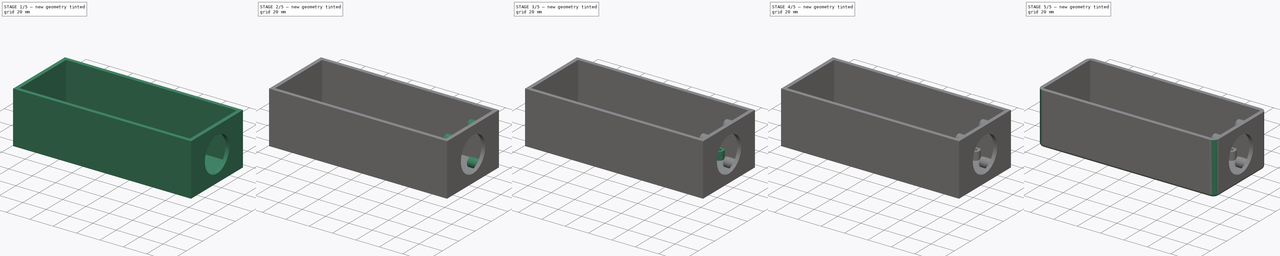
[diagram: build sequence overview — one tinted view per stage of 5, left to right]
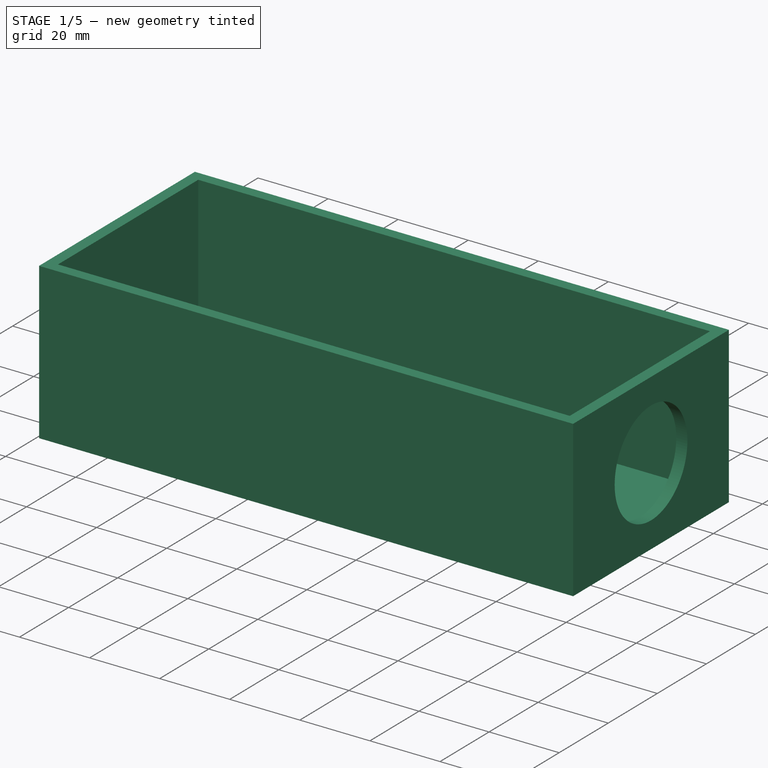
[diagram: stage 1 of 5 — iso view after this stage's code; geometry added in this stage tinted green]
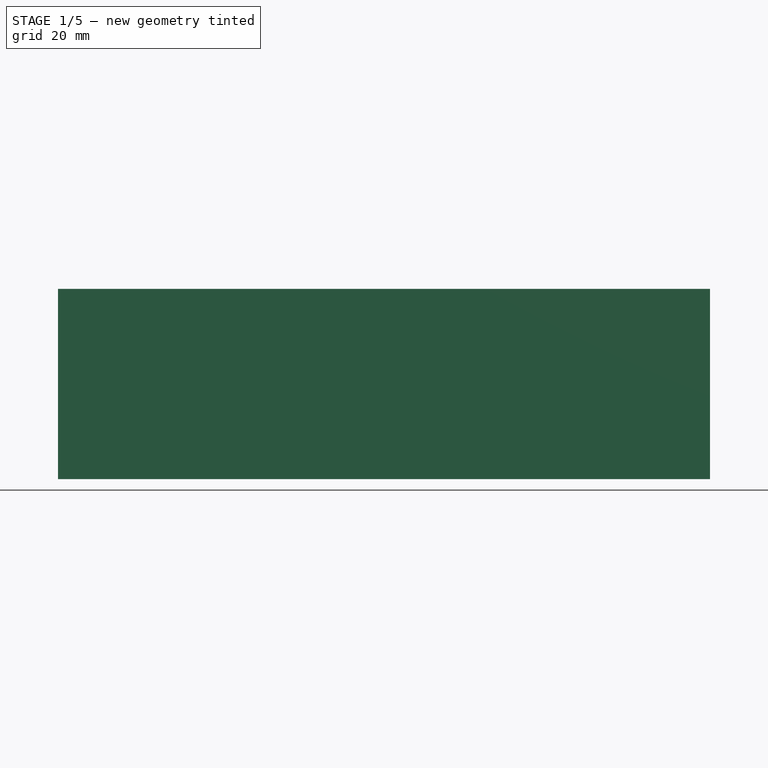
[diagram: stage 1 of 5 — front view after this stage's code; geometry added in this stage tinted green]
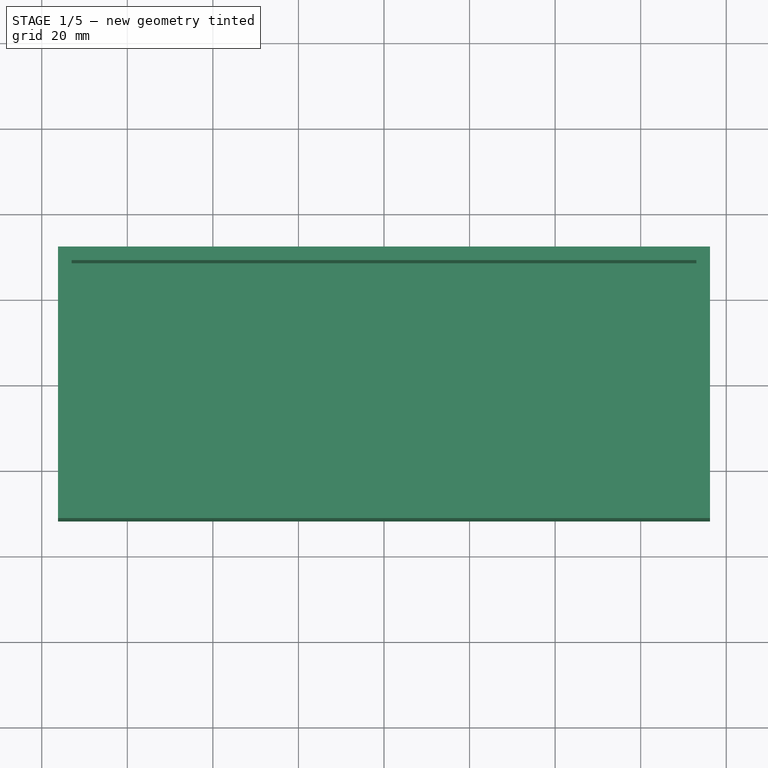
[diagram: stage 1 of 5 — top view after this stage's code; geometry added in this stage tinted green]
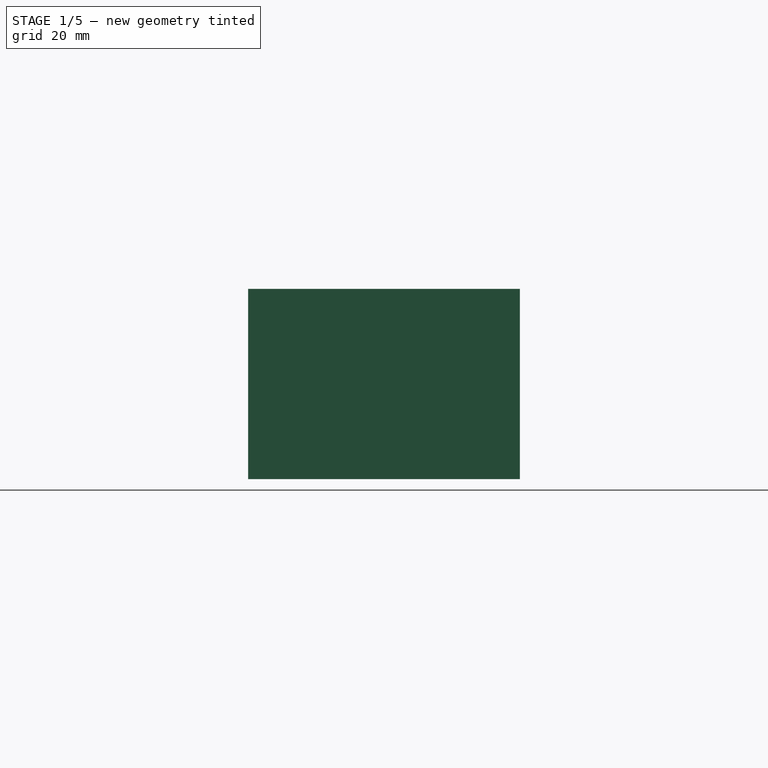
[diagram: stage 1 of 5 — right view after this stage's code; geometry added in this stage tinted green]
FCSTD DOCUMENT  (FreeCAD 1.0R39109 (Git))
Label: bottom
License: All rights reserved
LicenseURL: https://en.wikipedia.org/wiki/All_rights_reserved
objects: Sketcher::SketchObject×14, PartDesign::Pad×6, PartDesign::Hole×5, PartDesign::Pocket×3, PartDesign::Fillet×2, PartDesign::Body×1
note: 77 computed .brp shape members not serialized (recipe doc carries the construction recipe); baked Part::Feature solids carry a one-line shape summary decoded from their .brp

FEATURE [Sketcher::SketchObject] Sketch
  ArcFitTolerance = 1e-06
  AttachmentSupport = -> [XY_Plane]
  FullyConstrained = true
  MakeInternals = false
  MapMode = 5
  sketch-geometry (4):
    g0: LineSegment StartX=-76.2 StartY=31.75 StartZ=0 EndX=-76.2 EndY=-31.75 EndZ=0
    g1: LineSegment StartX=-76.2 StartY=-31.75 StartZ=0 EndX=76.2 EndY=-31.75 EndZ=0
    g2: LineSegment StartX=76.2 StartY=-31.75 StartZ=0 EndX=76.2 EndY=31.75 EndZ=0
    g3: LineSegment StartX=76.2 StartY=31.75 StartZ=0 EndX=-76.2 EndY=31.75 EndZ=0
  constraints (11):
    c: Coincident(g0,g1)
    c: Coincident(g1,g2)
    c: Coincident(g2,g3)
    c: Coincident(g3,g0)
    c: Vertical(g0)
    c: Vertical(g2)
    c: Horizontal(g1)
    c: Horizontal(g3)
    c: DistanceX(g3,g3) = 152.4
    c: Distance(g2,g2) = 63.5
    c: Symmetric(g0,g2,g-1)
FEATURE [PartDesign::Pad] Pad  label="Main Body"
  Direction = (0,0,1)
  Length = 44.45
  Length2 = 10
  Profile = -> Sketch
  ReferenceAxis = -> Sketch [N_Axis]
  Refine = true
  Suppressed = false
  Type = 0
FEATURE [Sketcher::SketchObject] Sketch001
  ArcFitTolerance = 1e-06
  AttachmentOffset = pos=(0,0,44.45) rot=(0,0,1;0rad)
  AttachmentSupport = -> [XY_Plane]
  FullyConstrained = true
  MakeInternals = false
  MapMode = 5
  Placement = pos=(0,0,44.45) rot=(0,0,1;0rad)
  sketch-geometry (4):
    g0: LineSegment StartX=-73.025 StartY=28.575 StartZ=0 EndX=-73.025 EndY=-28.575 EndZ=0
    g1: LineSegment StartX=-73.025 StartY=-28.575 StartZ=0 EndX=73.025 EndY=-28.575 EndZ=0
    g2: LineSegment StartX=73.025 StartY=-28.575 StartZ=0 EndX=73.025 EndY=28.575 EndZ=0
    g3: LineSegment StartX=73.025 StartY=28.575 StartZ=0 EndX=-73.025 EndY=28.575 EndZ=0
  constraints (11):
    c: Coincident(g0,g1)
    c: Coincident(g1,g2)
    c: Coincident(g2,g3)
    c: Coincident(g3,g0)
    c: Vertical(g0)
    c: Vertical(g2)
    c: Horizontal(g1)
    c: Horizontal(g3)
    c: Distance(g0,g2) = 146.05
    c: Distance(g1,g3) = 57.15
    c: Symmetric(g0,g1,g-1)
FEATURE [PartDesign::Pocket] Pocket  label="Main Body Pocket"
  BaseFeature = -> Pad
  Direction = (0,0,-1)
  Length = 41.275
  Length2 = 5
  Profile = -> Sketch001
  ReferenceAxis = -> Sketch001 [N_Axis]
  Refine = true
  Suppressed = false
  Type = 0
FEATURE [Sketcher::SketchObject] Sketch002
  ArcFitTolerance = 1e-06
  AttachmentOffset = pos=(0,0,76.2) rot=(0,0,1;0rad)
  AttachmentSupport = -> [YZ_Plane]
  FullyConstrained = true
  MakeInternals = false
  MapMode = 5
  Placement = pos=(76.2,0,0) rot=(0.57735,0.57735,0.57735;2.0944rad)
  sketch-geometry (1):
    g0: Circle CenterX=0 CenterY=22.2504 CenterZ=0 NormalX=0 NormalY=0 NormalZ=1 AngleXU=0 Radius=14.8171
  constraints (3):
    c: Diameter(g0) = 29.6342
    c: DistanceX(g0,g-1) = 0
    c: DistanceY(g-1,g0) = 22.2504
FEATURE [PartDesign::Pocket] Pocket001  label="Lens Hole"
  BaseFeature = -> Pocket
  Direction = (-1,0,0)
  Length = 5.0038
  Length2 = 5
  Profile = -> Sketch002
  ReferenceAxis = -> Sketch002 [N_Axis]
  Refine = true
  Suppressed = false
  Type = 0
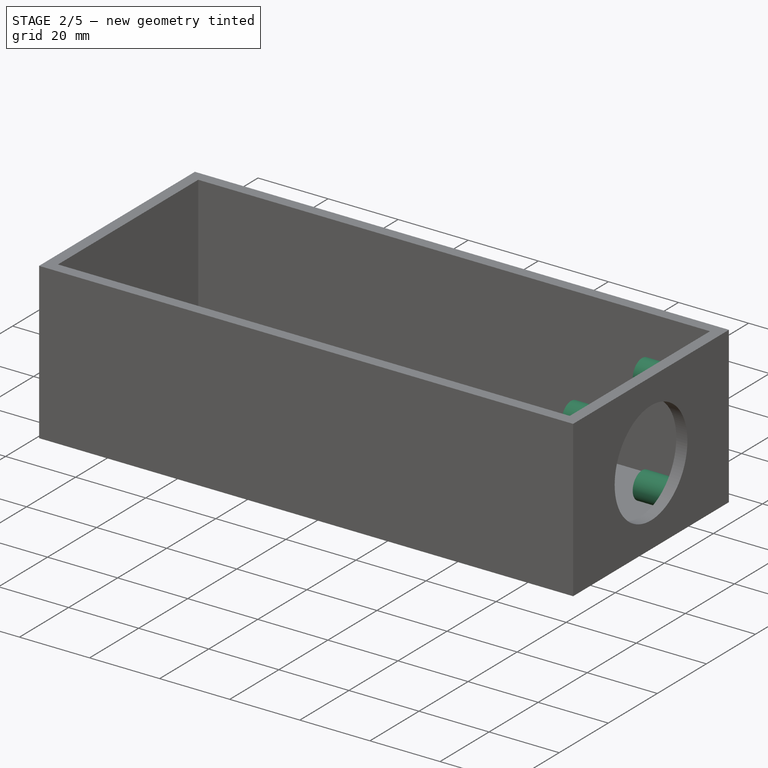
[diagram: stage 2 of 5 — iso view after this stage's code; geometry added in this stage tinted green]
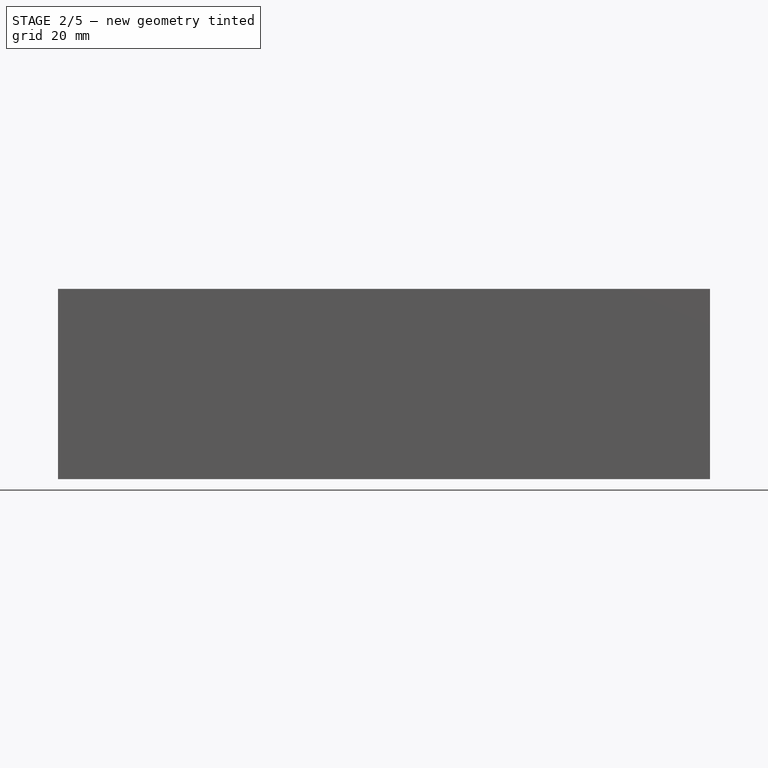
[diagram: stage 2 of 5 — front view after this stage's code; geometry added in this stage tinted green]
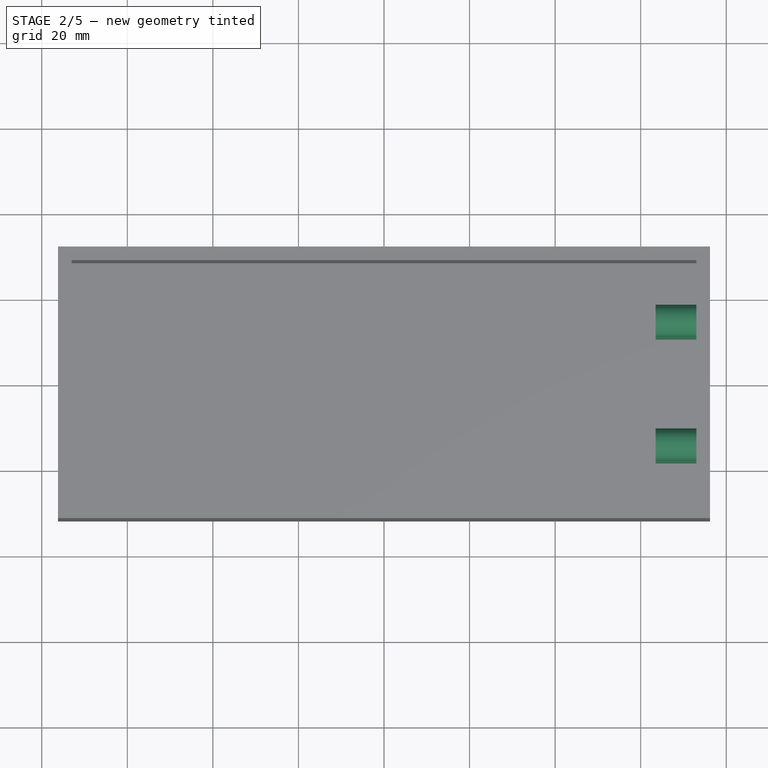
[diagram: stage 2 of 5 — top view after this stage's code; geometry added in this stage tinted green]
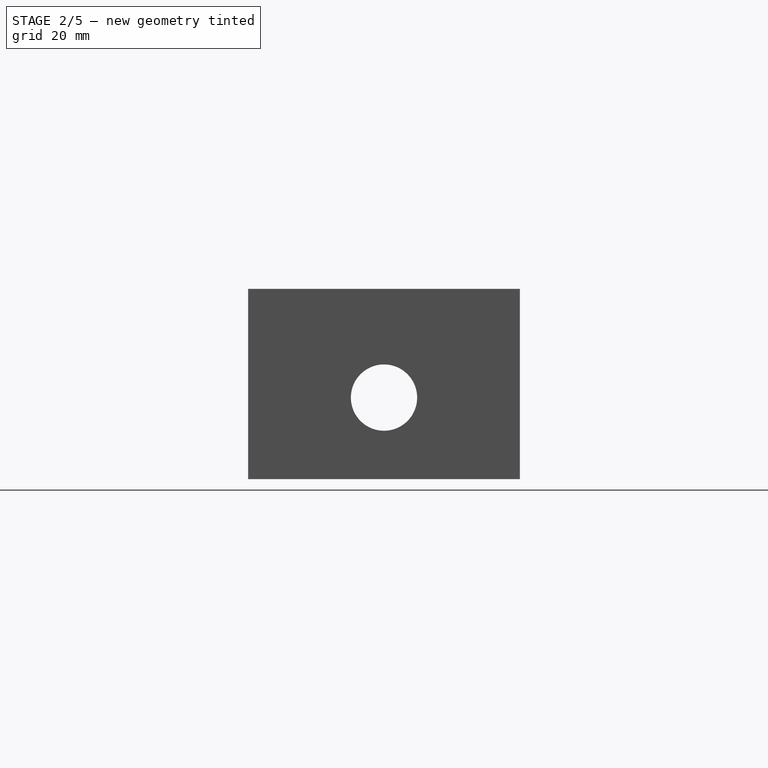
[diagram: stage 2 of 5 — right view after this stage's code; geometry added in this stage tinted green]
FEATURE [Sketcher::SketchObject] Sketch003
  ArcFitTolerance = 1e-06
  AttachmentOffset = pos=(0,0,73.025) rot=(0,0,1;0rad)
  AttachmentSupport = -> [YZ_Plane]
  FullyConstrained = true
  MakeInternals = false
  MapMode = 5
  Placement = pos=(73.025,0,0) rot=(0.57735,0.57735,0.57735;2.0944rad)
  sketch-geometry (4):
    g0: Circle CenterX=-14.478 CenterY=36.576 CenterZ=0 NormalX=0 NormalY=0 NormalZ=1 AngleXU=0 Radius=3.81
    g1: Circle CenterX=14.478 CenterY=36.576 CenterZ=0 NormalX=0 NormalY=0 NormalZ=1 AngleXU=0 Radius=3.81
    g2: Circle CenterX=14.478 CenterY=7.62 CenterZ=0 NormalX=0 NormalY=0 NormalZ=1 AngleXU=0 Radius=3.81
    g3: Circle CenterX=-14.478 CenterY=7.62 CenterZ=0 NormalX=0 NormalY=0 NormalZ=1 AngleXU=0 Radius=3.81
  constraints (12):
    c: Diameter(g0) = 7.62
    c: Diameter(g1) = 7.62
    c: Diameter(g2) = 7.62
    c: Diameter(g3) = 7.62
    c: DistanceX(g0,g3) = 0
    c: DistanceX(g2,g1) = 0
    c: DistanceX(g0,g1) = 28.956
    c: DistanceY(g0,g1) = 0
    c: DistanceY(g2,g3) = 0
    c: DistanceY(g3,g0) = 28.956
    c: DistanceY(g-1,g2) = 7.62
    c: DistanceX(g-1,g2) = 14.478
FEATURE [PartDesign::Pad] Pad001  label="Lens Standoff"
  BaseFeature = -> Pocket001
  Direction = (1,0,0)
  Length = 9.525
  Length2 = 10
  Profile = -> Sketch003
  ReferenceAxis = -> Sketch003 [N_Axis]
  Reversed = true
  Suppressed = false
  Type = 0
FEATURE [Sketcher::SketchObject] Sketch004
  ArcFitTolerance = 1e-06
  AttachmentOffset = pos=(0,0,76.2) rot=(0,0,1;0rad)
  FullyConstrained = true
  MakeInternals = false
  MapMode = 5
  Placement = pos=(73.025,0,0) rot=(0.57735,0.57735,0.57735;2.0944rad)
  sketch-geometry (4):
    g0: Circle CenterX=-14.478 CenterY=36.576 CenterZ=0 NormalX=0 NormalY=0 NormalZ=1 AngleXU=0 Radius=1.27
    g1: Circle CenterX=14.478 CenterY=36.576 CenterZ=0 NormalX=0 NormalY=0 NormalZ=1 AngleXU=0 Radius=1.27
    g2: Circle CenterX=14.478 CenterY=7.62 CenterZ=0 NormalX=0 NormalY=0 NormalZ=1 AngleXU=0 Radius=1.27
    g3: Circle CenterX=-14.478 CenterY=7.62 CenterZ=0 NormalX=0 NormalY=0 NormalZ=1 AngleXU=0 Radius=1.27
  constraints (12):
    c: Diameter(g0) = 2.54
    c: Diameter(g1) = 2.54
    c: Diameter(g2) = 2.54
    c: Diameter(g3) = 2.54
    c: DistanceX(g0,g3) = 0
    c: DistanceX(g2,g1) = 0
    c: DistanceX(g0,g1) = 28.956
    c: DistanceY(g0,g1) = 0
    c: DistanceY(g2,g3) = 0
    c: DistanceY(g3,g0) = 28.956
    c: DistanceY(g-1,g2) = 7.62
    c: DistanceX(g-1,g2) = 14.478
FEATURE [PartDesign::Hole] Hole  label="Lens Standoff holes"
  BaseFeature = -> Pad001
  CustomThreadClearance = 0
  Depth = 10.16
  DepthType = 0
  Diameter = 3.429
  DrillForDepth = false
  DrillPoint = 1
  DrillPointAngle = 118
  HoleCutCountersinkAngle = 90
  HoleCutCustomValues = false
  HoleCutDepth = 0
  HoleCutDiameter = 2.15001
  HoleCutType = 0
  ModelThread = false
  Profile = -> Sketch004
  Suppressed = false
  Tapered = false
  TaperedAngle = 90
  ThreadClass = 0
  ThreadDepth = 10.16
  ThreadDepthType = 0
  ThreadDirection = 0
  ThreadFit = 0
  ThreadSize = 0
  ThreadType = 0
  Threaded = false
  UseCustomThreadClearance = false
FEATURE [Sketcher::SketchObject] Sketch005
  ArcFitTolerance = 1e-06
  AttachmentOffset = pos=(0,0,-76.2) rot=(0,0,1;0rad)
  AttachmentSupport = -> [YZ_Plane]
  FullyConstrained = true
  MakeInternals = false
  MapMode = 5
  Placement = pos=(-76.2,0,0) rot=(0.57735,0.57735,0.57735;2.0944rad)
  sketch-geometry (1):
    g0: Circle CenterX=0 CenterY=19.05 CenterZ=0 NormalX=0 NormalY=0 NormalZ=1 AngleXU=0 Radius=7.747
  constraints (3):
    c: Diameter(g0) = 15.494
    c: DistanceX(g0,g-1) = 0
    c: DistanceY(g-1,g0) = 19.05
FEATURE [PartDesign::Pocket] Pocket002  label="USB Socket"
  BaseFeature = -> Hole
  Direction = (-1,0,0)
  Length = 25.4
  Length2 = 5
  Profile = -> Sketch005
  ReferenceAxis = -> Sketch005 [N_Axis]
  Reversed = true
  Suppressed = false
  Type = 0
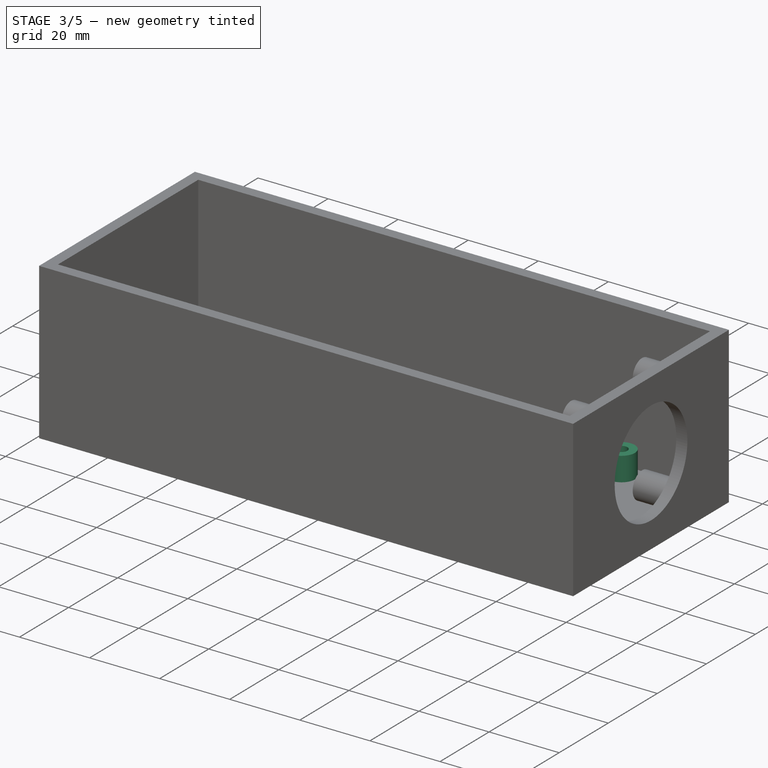
[diagram: stage 3 of 5 — iso view after this stage's code; geometry added in this stage tinted green]
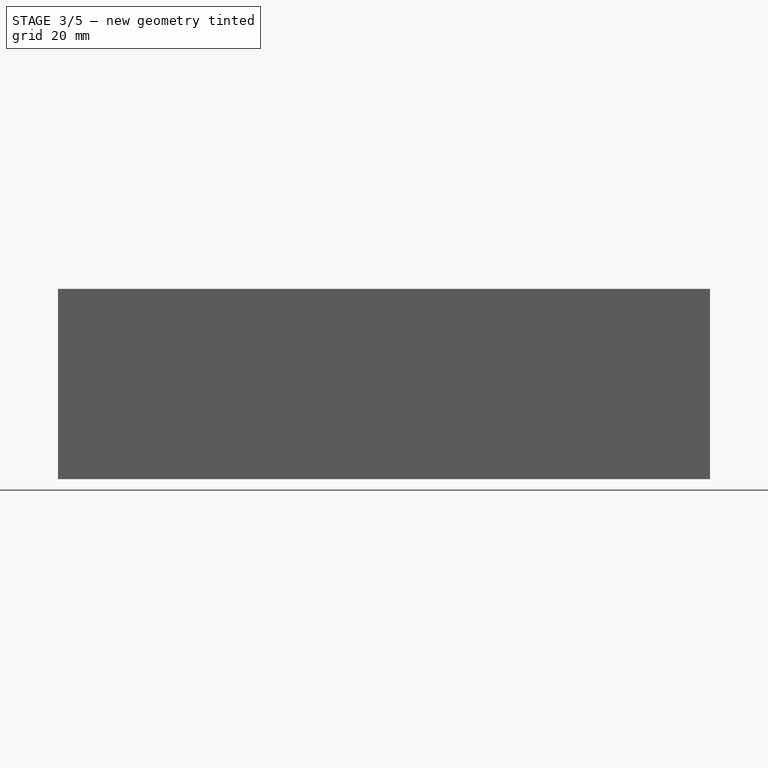
[diagram: stage 3 of 5 — front view after this stage's code; geometry added in this stage tinted green]
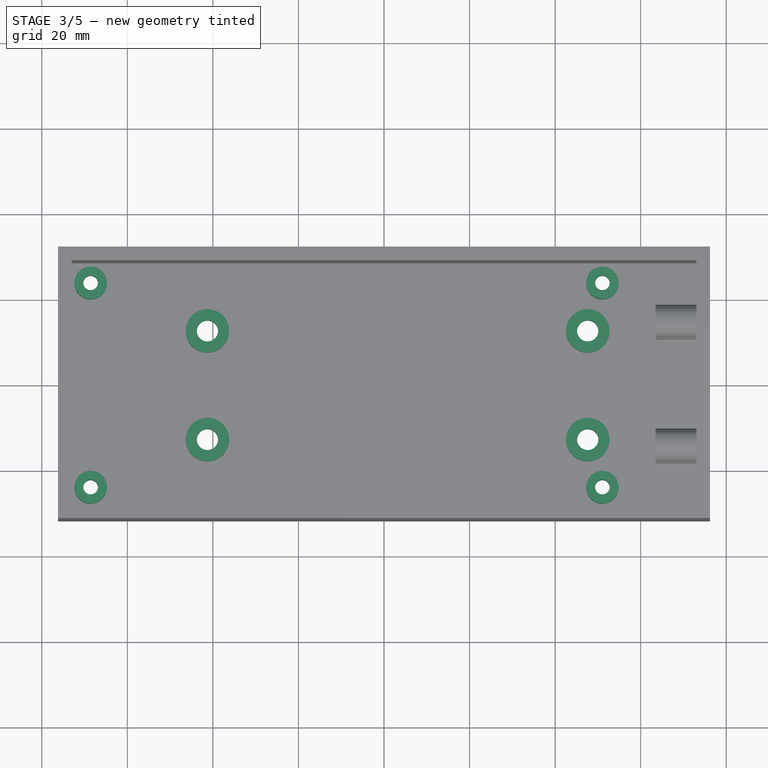
[diagram: stage 3 of 5 — top view after this stage's code; geometry added in this stage tinted green]
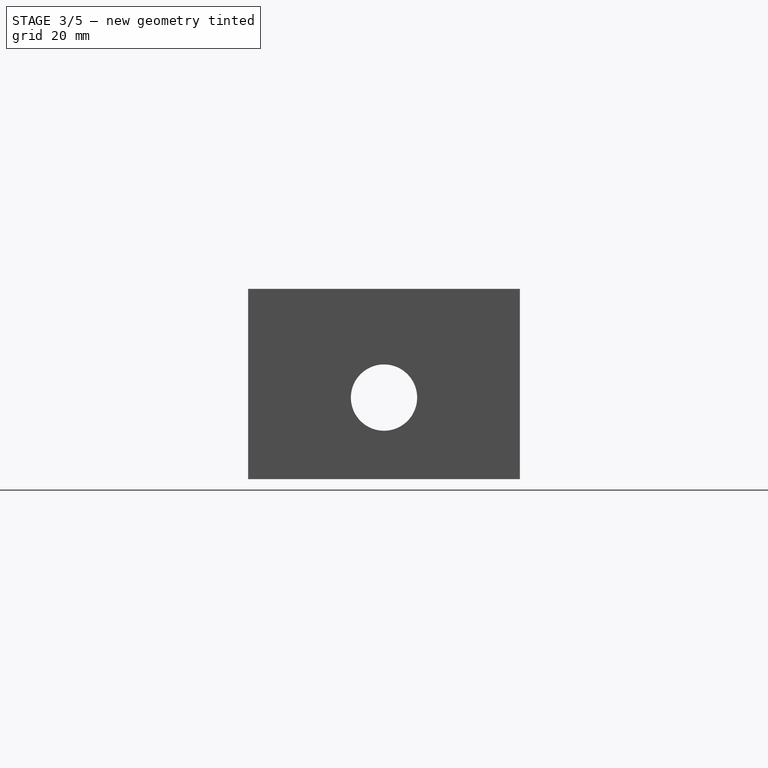
[diagram: stage 3 of 5 — right view after this stage's code; geometry added in this stage tinted green]
FEATURE [Sketcher::SketchObject] Sketch006
  ArcFitTolerance = 1e-06
  AttachmentSupport = -> [XY_Plane]
  FullyConstrained = true
  MakeInternals = false
  MapMode = 5
  sketch-geometry (4):
    g0: Circle CenterX=-41.275 CenterY=12.7 CenterZ=0 NormalX=0 NormalY=0 NormalZ=1 AngleXU=0 Radius=5.08
    g1: Circle CenterX=47.625 CenterY=12.7 CenterZ=0 NormalX=0 NormalY=0 NormalZ=1 AngleXU=0 Radius=5.08
    g2: Circle CenterX=47.625 CenterY=-12.7 CenterZ=0 NormalX=0 NormalY=0 NormalZ=1 AngleXU=0 Radius=5.08
    g3: Circle CenterX=-41.275 CenterY=-12.7 CenterZ=0 NormalX=0 NormalY=0 NormalZ=1 AngleXU=0 Radius=5.08
  constraints (12):
    c: Diameter(g3) = 10.16
    c: Diameter(g2) = 10.16
    c: Diameter(g1) = 10.16
    c: Diameter(g0) = 10.16
    c: DistanceX(g3,g0) = 0
    c: DistanceX(g1,g2) = 0
    c: DistanceX(g3,g2) = 88.9
    c: DistanceY(g3,g2) = 0
    c: DistanceY(g0,g1) = 0
    c: DistanceY(g3,g0) = 25.4
    c: DistanceY(g3,g-1) = 12.7
    c: DistanceX(g3,g-1) = 41.275
FEATURE [PartDesign::Pad] Pad002  label="Baseplate screws"
  BaseFeature = -> Pocket002
  Direction = (0,0,1)
  Length = 7.62
  Length2 = 10
  Profile = -> Sketch006
  ReferenceAxis = -> Sketch006 [N_Axis]
  Refine = true
  Suppressed = false
  Type = 0
FEATURE [Sketcher::SketchObject] Sketch007
  ArcFitTolerance = 1e-06
  AttachmentSupport = -> [XY_Plane]
  FullyConstrained = true
  MakeInternals = false
  MapMode = 5
  sketch-geometry (4):
    g0: Circle CenterX=-41.275 CenterY=12.7 CenterZ=0 NormalX=0 NormalY=0 NormalZ=1 AngleXU=0 Radius=1.524
    g1: Circle CenterX=47.625 CenterY=12.7 CenterZ=0 NormalX=0 NormalY=0 NormalZ=1 AngleXU=0 Radius=1.524
    g2: Circle CenterX=47.625 CenterY=-12.7 CenterZ=0 NormalX=0 NormalY=0 NormalZ=1 AngleXU=0 Radius=1.524
    g3: Circle CenterX=-41.275 CenterY=-12.7 CenterZ=0 NormalX=0 NormalY=0 NormalZ=1 AngleXU=0 Radius=1.524
  constraints (12):
    c: Diameter(g3) = 3.048
    c: Diameter(g2) = 3.048
    c: Diameter(g1) = 3.048
    c: Diameter(g0) = 3.048
    c: DistanceX(g3,g0) = 0
    c: DistanceX(g1,g2) = 0
    c: DistanceX(g3,g2) = 88.9
    c: DistanceY(g3,g2) = 0
    c: DistanceY(g0,g1) = 0
    c: DistanceY(g3,g0) = 25.4
    c: DistanceY(g3,g-1) = 12.7
    c: DistanceX(g3,g-1) = 41.275
FEATURE [PartDesign::Hole] Hole001  label="Baseplate Inserts"
  BaseFeature = -> Pad002
  CustomThreadClearance = 0
  Depth = 24.9936
  DepthType = 0
  Diameter = 4.953
  DrillForDepth = false
  DrillPoint = 1
  DrillPointAngle = 118
  HoleCutCountersinkAngle = 90
  HoleCutCustomValues = false
  HoleCutDepth = 0
  HoleCutDiameter = 0
  HoleCutType = 0
  ModelThread = false
  Profile = -> Sketch007
  Refine = true
  Reversed = true
  Suppressed = false
  Tapered = false
  TaperedAngle = 90
  ThreadClass = 0
  ThreadDepth = 24.9936
  ThreadDepthType = 0
  ThreadDirection = 0
  ThreadFit = 0
  ThreadSize = 0
  ThreadType = 0
  Threaded = false
  UseCustomThreadClearance = false
FEATURE [Sketcher::SketchObject] Sketch008
  ArcFitTolerance = 1e-06
  AttachmentSupport = -> [XY_Plane]
  FullyConstrained = true
  MakeInternals = false
  MapMode = 5
  sketch-geometry (4):
    g0: Circle CenterX=-68.58 CenterY=23.876 CenterZ=0 NormalX=0 NormalY=0 NormalZ=1 AngleXU=0 Radius=3.81
    g1: Circle CenterX=-68.58 CenterY=-23.876 CenterZ=0 NormalX=0 NormalY=0 NormalZ=1 AngleXU=0 Radius=3.81
    g2: Circle CenterX=51.054 CenterY=23.876 CenterZ=0 NormalX=0 NormalY=0 NormalZ=1 AngleXU=0 Radius=3.81
    g3: Circle CenterX=51.054 CenterY=-23.876 CenterZ=0 NormalX=0 NormalY=0 NormalZ=1 AngleXU=0 Radius=3.81
  constraints (12):
    c: Diameter(g1) = 7.62
    c: Diameter(g0) = 7.62
    c: Diameter(g3) = 7.62
    c: Diameter(g2) = 7.62
    c: DistanceX(g0,g1) = 0
    c: DistanceX(g3,g2) = 0
    c: DistanceX(g1,g3) = 119.634
    c: DistanceX(g1,g-1) = 68.58
    c: DistanceY(g3,g1) = 0
    c: DistanceY(g0,g2) = 0
    c: DistanceY(g-1,g0) = 23.876
    c: DistanceY(g1,g0) = 47.752
FEATURE [PartDesign::Pad] Pad003  label="Case Screw guides"
  BaseFeature = -> Hole001
  Direction = (0,0,1)
  Length = 10.0076
  Length2 = 10
  Profile = -> Sketch008
  ReferenceAxis = -> Sketch008 [N_Axis]
  Refine = true
  Suppressed = false
  Type = 0
FEATURE [Sketcher::SketchObject] Sketch009
  ArcFitTolerance = 1e-06
  AttachmentSupport = -> [XY_Plane]
  FullyConstrained = true
  MakeInternals = false
  MapMode = 5
  sketch-geometry (4):
    g0: Circle CenterX=-68.58 CenterY=23.876 CenterZ=0 NormalX=0 NormalY=0 NormalZ=1 AngleXU=0 Radius=3.81
    g1: Circle CenterX=-68.58 CenterY=-23.876 CenterZ=0 NormalX=0 NormalY=0 NormalZ=1 AngleXU=0 Radius=3.81
    g2: Circle CenterX=51.054 CenterY=23.876 CenterZ=0 NormalX=0 NormalY=0 NormalZ=1 AngleXU=0 Radius=3.81
    g3: Circle CenterX=51.054 CenterY=-23.876 CenterZ=0 NormalX=0 NormalY=0 NormalZ=1 AngleXU=0 Radius=3.81
  constraints (12):
    c: Diameter(g1) = 7.62
    c: Diameter(g0) = 7.62
    c: Diameter(g3) = 7.62
    c: Diameter(g2) = 7.62
    c: DistanceX(g0,g1) = 0
    c: DistanceX(g3,g2) = 0
    c: DistanceX(g1,g3) = 119.634
    c: DistanceX(g1,g-1) = 68.58
    c: DistanceY(g3,g1) = 0
    c: DistanceY(g0,g2) = 0
    c: DistanceY(g-1,g0) = 23.876
    c: DistanceY(g1,g0) = 47.752
FEATURE [PartDesign::Hole] Hole002  label="Case Screw holes"
  BaseFeature = -> Pad003
  CustomThreadClearance = 0
  Depth = 126.594
  DepthType = 0
  Diameter = 3.4
  DrillForDepth = false
  DrillPoint = 1
  DrillPointAngle = 118
  HoleCutCountersinkAngle = 90
  HoleCutCustomValues = false
  HoleCutDepth = 2.286
  HoleCutDiameter = 8.0772
  HoleCutType = 2
  ModelThread = false
  Profile = -> Sketch009
  Refine = true
  Reversed = true
  Suppressed = false
  Tapered = false
  TaperedAngle = 90
  ThreadClass = 0
  ThreadDepth = 126.594
  ThreadDepthType = 0
  ThreadDirection = 0
  ThreadFit = 0
  ThreadSize = 9
  ThreadType = 1
  Threaded = false
  UseCustomThreadClearance = false
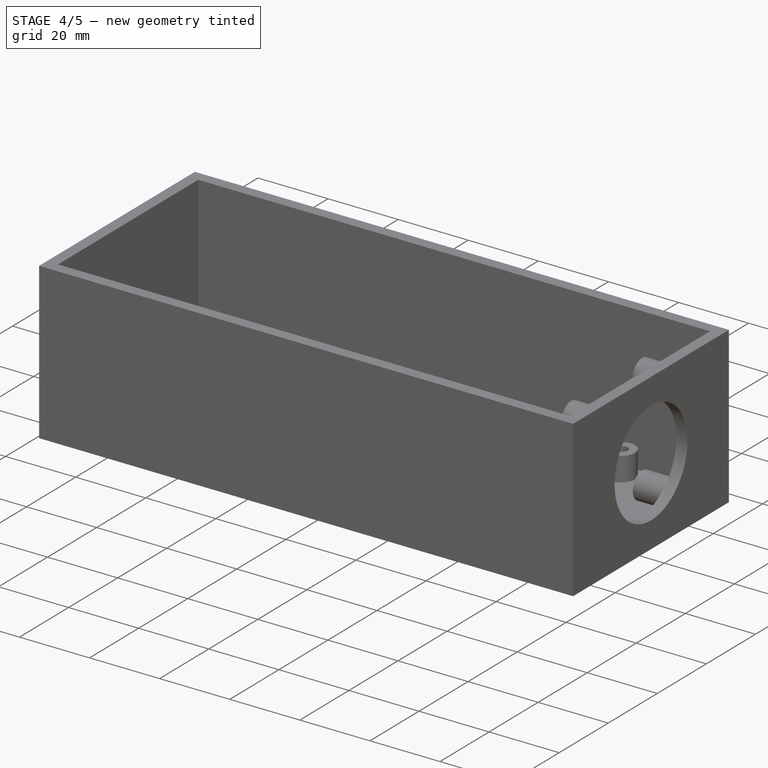
[diagram: stage 4 of 5 — iso view after this stage's code; geometry added in this stage tinted green]
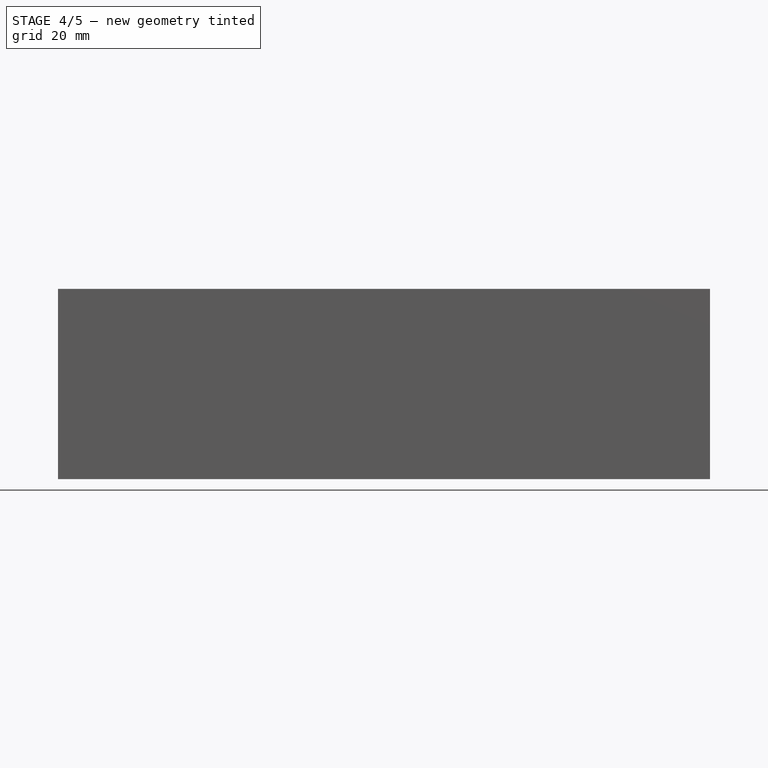
[diagram: stage 4 of 5 — front view after this stage's code; geometry added in this stage tinted green]
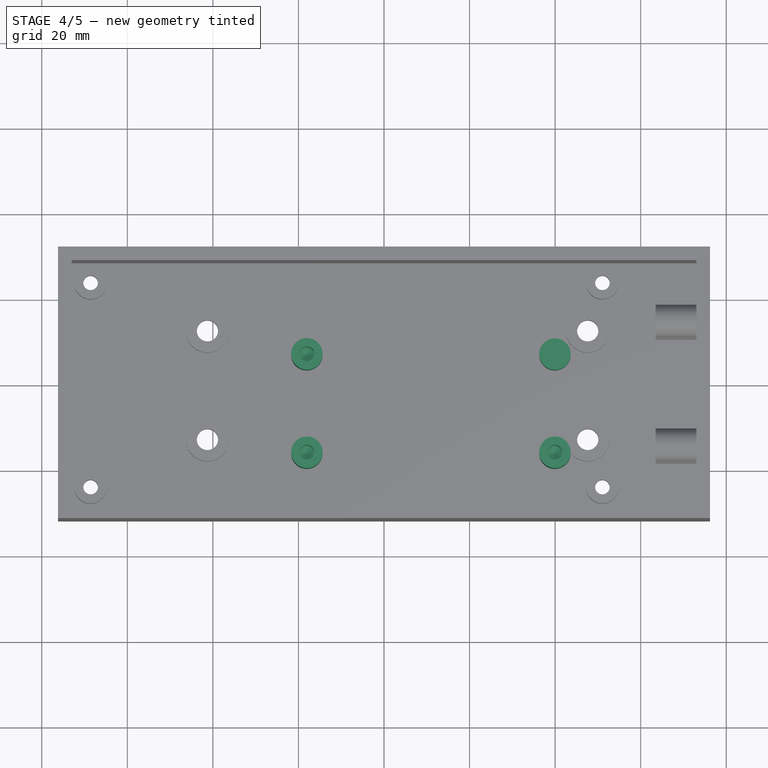
[diagram: stage 4 of 5 — top view after this stage's code; geometry added in this stage tinted green]
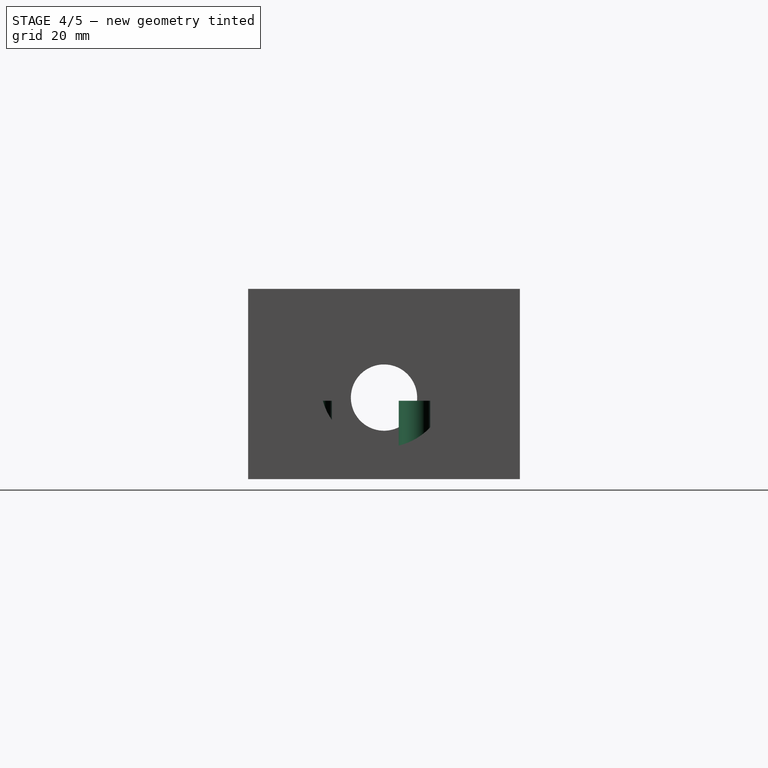
[diagram: stage 4 of 5 — right view after this stage's code; geometry added in this stage tinted green]
FEATURE [Sketcher::SketchObject] Sketch010
  ArcFitTolerance = 1e-06
  AttachmentOffset = pos=(0,0,3.175) rot=(0,0,1;0rad)
  AttachmentSupport = -> [XY_Plane]
  FullyConstrained = true
  MakeInternals = false
  MapMode = 5
  Placement = pos=(0,0,3.175) rot=(0,0,1;0rad)
  sketch-geometry (3):
    g0: Circle CenterX=-18.034 CenterY=7.1374 CenterZ=0 NormalX=0 NormalY=0 NormalZ=1 AngleXU=0 Radius=3.683
    g1: Circle CenterX=-18.034 CenterY=-15.875 CenterZ=0 NormalX=0 NormalY=0 NormalZ=1 AngleXU=0 Radius=3.683
    g2: Circle CenterX=39.9542 CenterY=-15.875 CenterZ=0 NormalX=0 NormalY=0 NormalZ=1 AngleXU=0 Radius=3.683
  constraints (9):
    c: Diameter(g1) = 7.366
    c: Diameter(g2) = 7.366
    c: Diameter(g0) = 7.366
    c: DistanceY(g1,g2) = 0
    c: DistanceY(g1,g0) = 23.0124
    c: DistanceX(g1,g0) = 0
    c: DistanceX(g1,g2) = 57.9882
    c: DistanceY(g-1,g0) = 7.1374
    c: DistanceX(g1,g-1) = 18.034
FEATURE [PartDesign::Pad] Pad004  label="Pi Standoffs"
  BaseFeature = -> Hole002
  Direction = (0,0,1)
  Length = 15.1384
  Length2 = 10
  Profile = -> Sketch010
  ReferenceAxis = -> Sketch010 [N_Axis]
  Suppressed = false
  Type = 0
FEATURE [Sketcher::SketchObject] Sketch011
  ArcFitTolerance = 1e-06
  AttachmentOffset = pos=(0,0,18.3134) rot=(0,0,1;0rad)
  AttachmentSupport = -> [XY_Plane]
  FullyConstrained = true
  MakeInternals = false
  MapMode = 5
  Placement = pos=(0,0,18.3134) rot=(0,0,1;0rad)
  sketch-geometry (3):
    g0: Circle CenterX=-18.034 CenterY=7.1374 CenterZ=0 NormalX=0 NormalY=0 NormalZ=1 AngleXU=0 Radius=3.683
    g1: Circle CenterX=-18.034 CenterY=-15.875 CenterZ=0 NormalX=0 NormalY=0 NormalZ=1 AngleXU=0 Radius=3.683
    g2: Circle CenterX=39.9542 CenterY=-15.875 CenterZ=0 NormalX=0 NormalY=0 NormalZ=1 AngleXU=0 Radius=3.683
  constraints (9):
    c: Diameter(g1) = 7.366
    c: Diameter(g2) = 7.366
    c: Diameter(g0) = 7.366
    c: DistanceY(g1,g2) = 0
    c: DistanceY(g1,g0) = 23.0124
    c: DistanceX(g1,g0) = 0
    c: DistanceX(g1,g2) = 57.9882
    c: DistanceY(g-1,g0) = 7.1374
    c: DistanceX(g1,g-1) = 18.034
FEATURE [PartDesign::Hole] Hole003  label="Pi Standoff holes"
  BaseFeature = -> Pad004
  CustomThreadClearance = 0
  Depth = 10.16
  DepthType = 0
  Diameter = 3.429
  DrillForDepth = false
  DrillPoint = 1
  DrillPointAngle = 118
  HoleCutCountersinkAngle = 90
  HoleCutCustomValues = false
  HoleCutDepth = 0
  HoleCutDiameter = 2.15001
  HoleCutType = 0
  ModelThread = false
  Profile = -> Sketch011
  Suppressed = false
  Tapered = false
  TaperedAngle = 90
  ThreadClass = 0
  ThreadDepth = 10.16
  ThreadDepthType = 0
  ThreadDirection = 0
  ThreadFit = 0
  ThreadSize = 0
  ThreadType = 0
  Threaded = false
  UseCustomThreadClearance = false
FEATURE [Sketcher::SketchObject] Sketch012
  ArcFitTolerance = 1e-06
  AttachmentOffset = pos=(0,0,3.175) rot=(0,0,1;0rad)
  AttachmentSupport = -> [XY_Plane]
  FullyConstrained = true
  MakeInternals = false
  MapMode = 5
  Placement = pos=(0,0,3.175) rot=(0,0,1;0rad)
  sketch-geometry (1):
    g0: Circle CenterX=39.9542 CenterY=7.1374 CenterZ=0 NormalX=0 NormalY=0 NormalZ=1 AngleXU=0 Radius=3.683
  constraints (3):
    c: Diameter(g0) = 7.366
    c: DistanceX(g-1,g0) = 39.9542
    c: DistanceY(g-1,g0) = 7.1374
FEATURE [PartDesign::Pad] Pad005  label="Short Standoff"
  BaseFeature = -> Hole003
  Direction = (0,0,1)
  Length = 10.7696
  Length2 = 10
  Profile = -> Sketch012
  ReferenceAxis = -> Sketch012 [N_Axis]
  Suppressed = false
  Type = 0
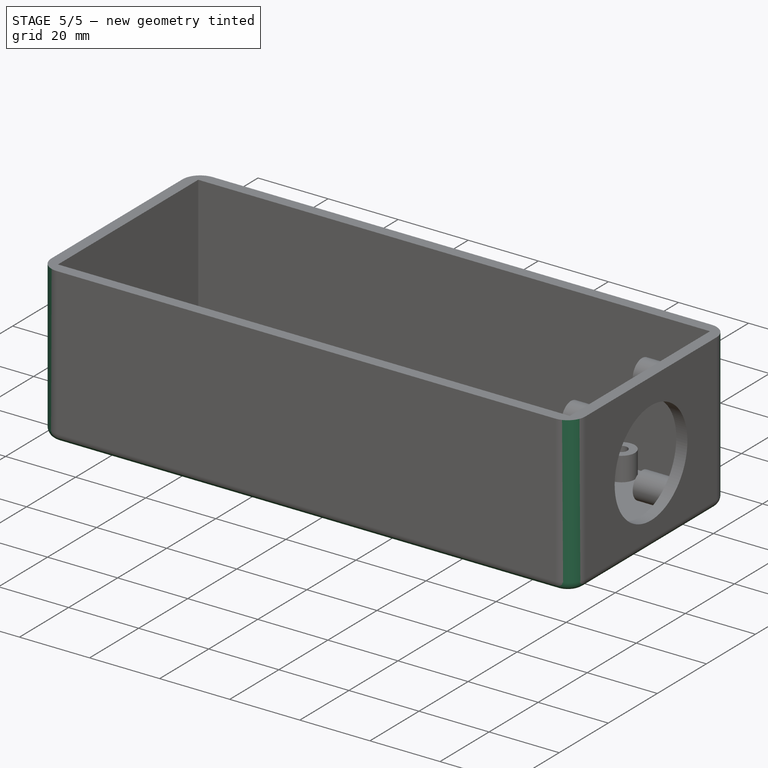
[diagram: stage 5 of 5 — iso view after this stage's code; geometry added in this stage tinted green]
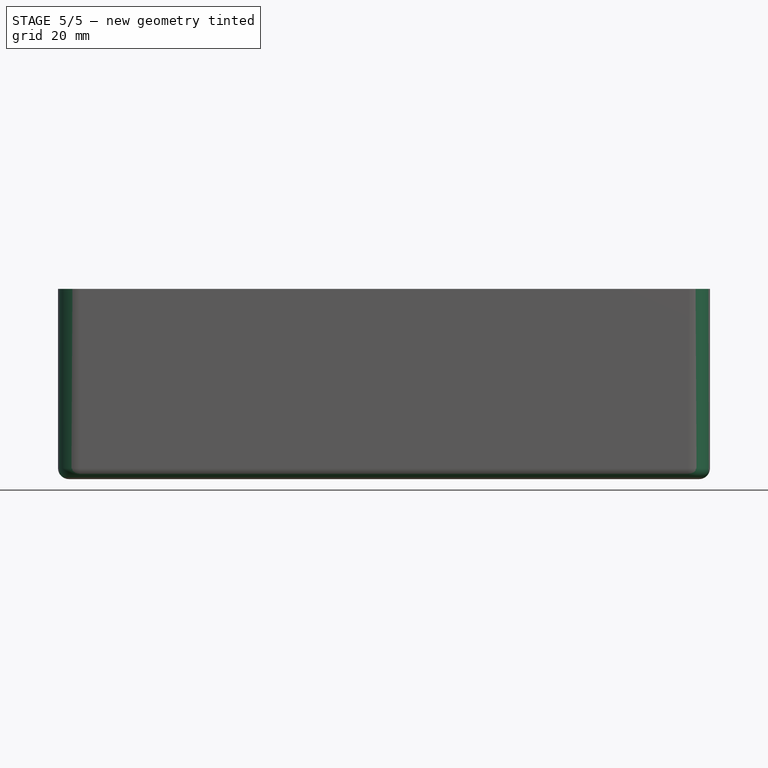
[diagram: stage 5 of 5 — front view after this stage's code; geometry added in this stage tinted green]
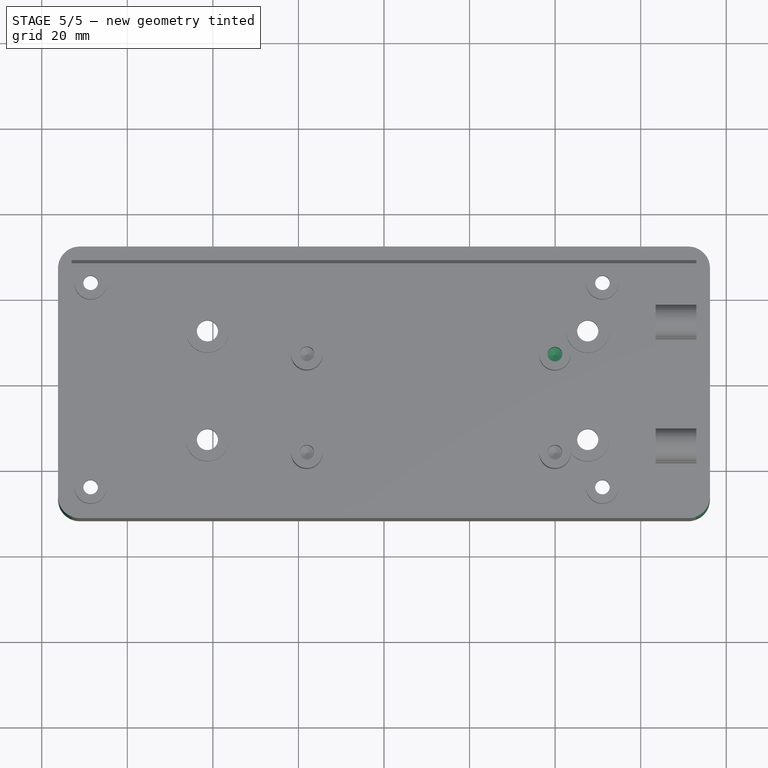
[diagram: stage 5 of 5 — top view after this stage's code; geometry added in this stage tinted green]
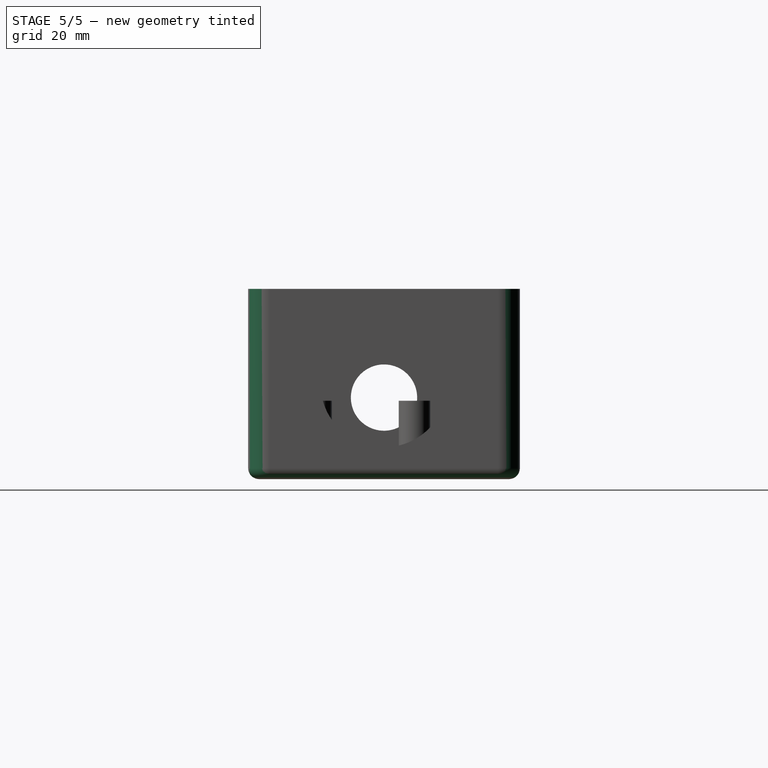
[diagram: stage 5 of 5 — right view after this stage's code; geometry added in this stage tinted green]
FEATURE [Sketcher::SketchObject] Sketch013
  ArcFitTolerance = 1e-06
  AttachmentOffset = pos=(0,0,13.9446) rot=(0,0,1;0rad)
  AttachmentSupport = -> [XY_Plane]
  FullyConstrained = true
  MakeInternals = false
  MapMode = 5
  Placement = pos=(0,0,13.9446) rot=(0,0,1;0rad)
  sketch-geometry (1):
    g0: Circle CenterX=39.9542 CenterY=7.1374 CenterZ=0 NormalX=0 NormalY=0 NormalZ=1 AngleXU=0 Radius=3.683
  constraints (3):
    c: Diameter(g0) = 7.366
    c: DistanceX(g-1,g0) = 39.9542
    c: DistanceY(g-1,g0) = 7.1374
FEATURE [PartDesign::Hole] Hole004
  BaseFeature = -> Pad005
  CustomThreadClearance = 0
  Depth = 10.16
  DepthType = 0
  Diameter = 3.429
  DrillForDepth = false
  DrillPoint = 1
  DrillPointAngle = 118
  HoleCutCountersinkAngle = 90
  HoleCutCustomValues = false
  HoleCutDepth = 0
  HoleCutDiameter = 0
  HoleCutType = 0
  ModelThread = false
  Profile = -> Sketch013
  Refine = true
  Suppressed = false
  Tapered = false
  TaperedAngle = 90
  ThreadClass = 0
  ThreadDepth = 10.16
  ThreadDepthType = 0
  ThreadDirection = 0
  ThreadFit = 0
  ThreadSize = 0
  ThreadType = 0
  Threaded = false
  UseCustomThreadClearance = false
FEATURE [PartDesign::Fillet] Fillet
  Base = -> Hole004 [Edge6,Edge1,Edge4,Edge25]
  BaseFeature = -> Hole004
  Radius = 5.08
  Refine = true
  SupportTransform = false
  Suppressed = false
  UseAllEdges = false
FEATURE [PartDesign::Fillet] Fillet001
  Base = -> Fillet [Edge9]
  BaseFeature = -> Fillet
  Radius = 2.54
  Refine = true
  SupportTransform = false
  Suppressed = false
  UseAllEdges = false
FEATURE [PartDesign::Body] Body
  AllowCompound = false
  Group = -> [Sketch,Pad,Sketch001,Pocket,Sketch002,Pocket001,Sketch003,Pad001,Sketch004,Hole,Sketch005,Pocket002,Sketch006,Pad002,Sketch007,Hole001,Sketch008,Pad003,Sketch009,Hole002,Sketch010,Pad004,Sketch011,Hole003,Sketch012,Pad005,Sketch013,Hole004,Fillet,Fillet001]
  Origin = -> Origin
  Tip = -> Fillet001
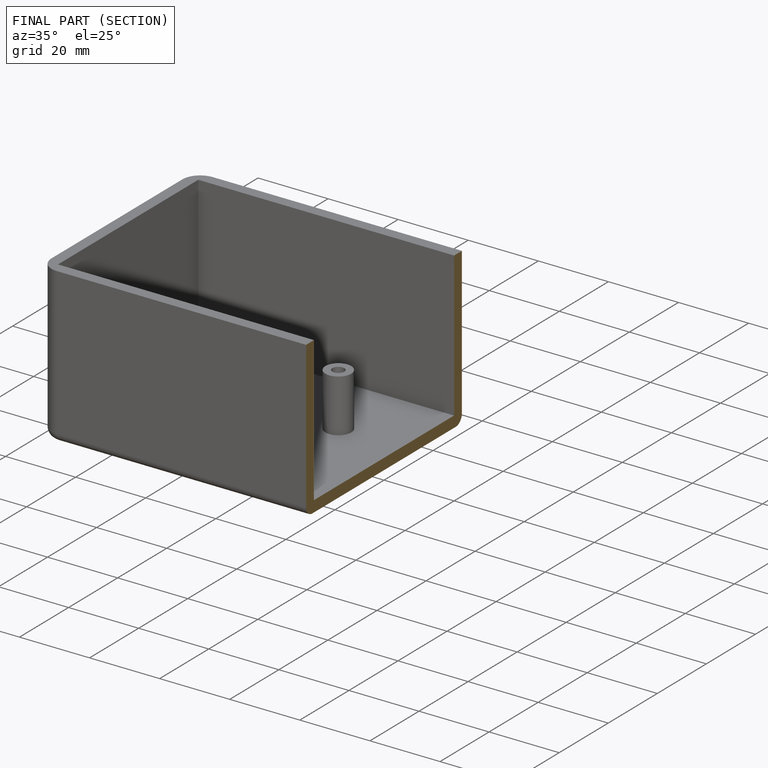
[diagram: finished part — half-section view (interior)]
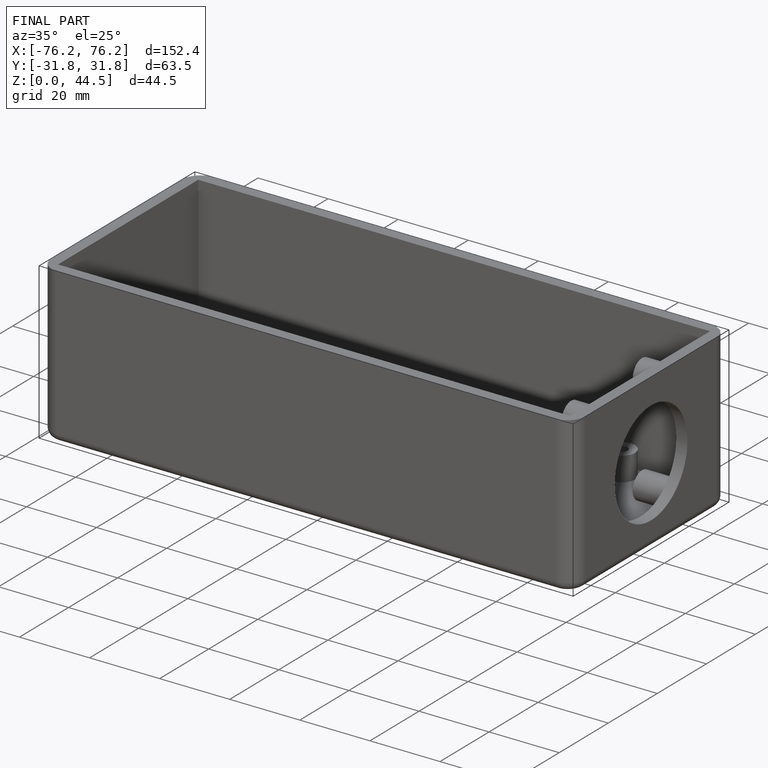
[diagram: finished part — iso view with bounding-box wireframe]
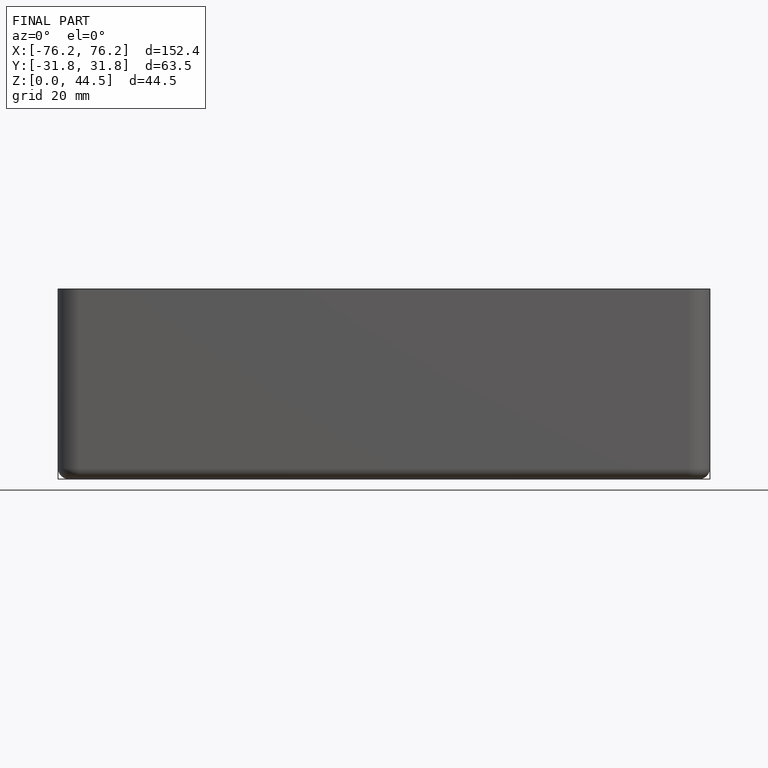
[diagram: finished part — front view with bounding-box wireframe]
